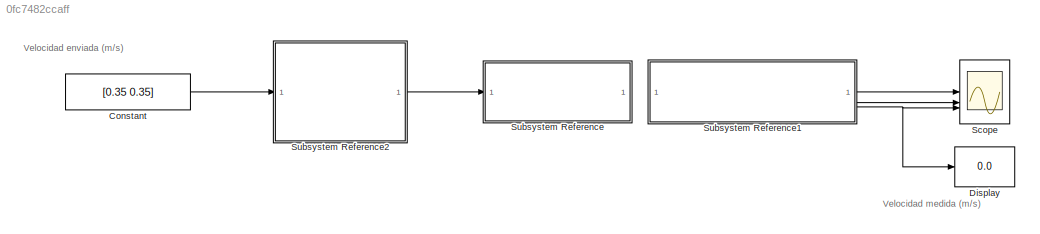
MODEL slx_0fc7482ccaff
KIND model
CONFIG AbsTol = auto
CONFIG EnableMultiTasking = on
CONFIG FixedStep = auto
CONFIG MaxStep = auto
CONFIG MinStep = auto
CONFIG RelTol = 1e-3
CONFIG SampleTimeConstraint = Unconstrained
CONFIG SolverName = FixedStepAuto
CONFIG StartTime = 0.0
CONFIG StopTime = inf
BLOCK [Constant] Constant
  Value = [0.35 0.35]
BLOCK [Display] Display
  Decimation = 1
BLOCK [Scope] Scope
  Floating = off
  NumInputPorts = 3
  ScopeSpecificationString = Simulink.scopes.TimeScopeBlockCfg('CurrentConfiguration', extmgr.ConfigurationSet(extmgr.Configuration('Core','General UI',true),extmgr.Configuration('Core','Source UI',true),extmgr.Configuration('Sources','WiredSimulink',true),extmgr.Configuration('Visuals','Time Domain',true),extmgr.Configuration('Tools','Plot Navigation',true),extmgr.Configuration('Tools','Measurements',true)),'Version','2023b'...<+1ch>
BLOCK [SubSystem] Subsystem Reference
  ReferencedSubsystem = Sub_Motores
BLOCK [SubSystem] Subsystem Reference1
  ReferencedSubsystem = Sub_Encoders
BLOCK [SubSystem] Subsystem Reference2
  ReferencedSubsystem = Contolador_BA
ANNOTATION (root): Velocidad enviada (m/s)
ANNOTATION (root): Velocidad medida (m/s)
LINE Constant:1 -> Subsystem Reference2:1
LINE Subsystem Reference1:1 -> Scope:1
LINE Subsystem Reference1:2 -> Scope:2
NET Subsystem Reference1:3 -> Display:1, Scope:3
LINE Subsystem Reference2:1 -> Subsystem Reference:1
note: NET lines group one-source signal fan-out (src -> all destinations, sorted); 1:1 wires keep LINE
